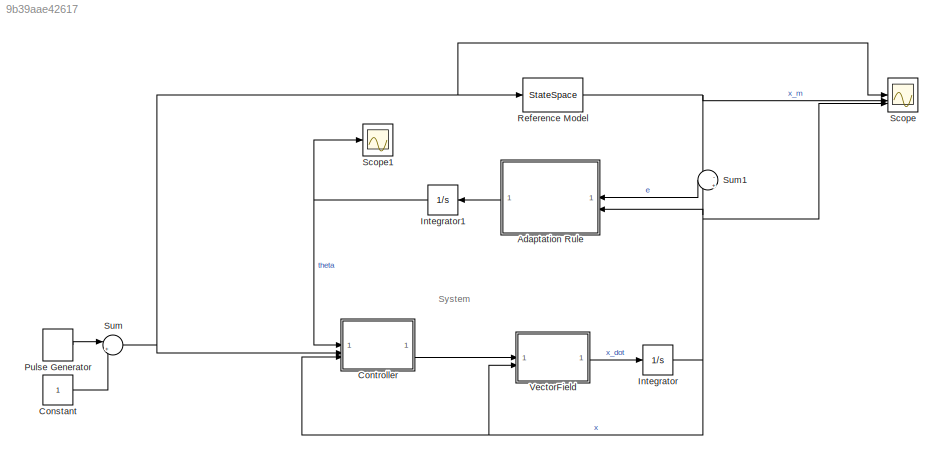
MODEL slx_9b39aae42617
KIND model
CONFIG AbsTol = auto
CONFIG EnableMultiTasking = off
CONFIG FixedStep = 0.01
CONFIG MaxStep = auto
CONFIG MinStep = auto
CONFIG RelTol = 1e-3
CONFIG SampleTimeConstraint = Unconstrained
CONFIG SolverName = FixedStepAuto
CONFIG StartTime = 0.0
CONFIG StopTime = 200.0
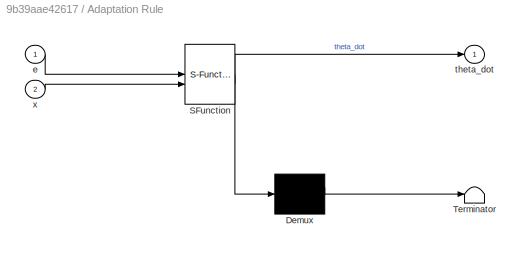
BLOCK [SubSystem] Adaptation Rule
  ErrorFcn = Stateflow.Translate.translate
  LibrarySourceBlock = simulink/User-Defined\nFunctions/MATLAB Function
  PermitHierarchicalResolution = ExplicitOnly
  SFBlockType = MATLAB Function
  TreatAsAtomicUnit = on
BLOCK [Demux] Adaptation Rule/ Demux 
  Outputs = 1
BLOCK [S-Function] Adaptation Rule/ SFunction 
  EnableBusSupport = on
  FunctionName = sf_sfun
  PortCounts = [2 2]
  SFcnIsStateOwnerBlock = off
  SFunctionDeploymentMode = off
  Tag = Stateflow S-Function 3
BLOCK [Terminator] Adaptation Rule/ Terminator 
BLOCK [Inport] Adaptation Rule/e
BLOCK [Outport] Adaptation Rule/theta_dot
BLOCK [Inport] Adaptation Rule/x
  Port = 2
BLOCK [Constant] Constant
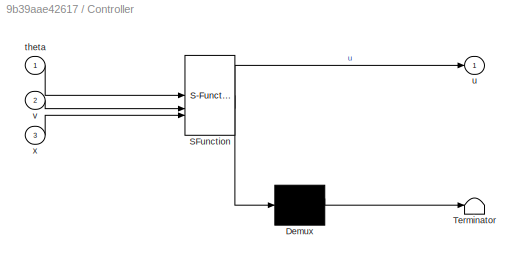
BLOCK [SubSystem] Controller
  ErrorFcn = Stateflow.Translate.translate
  LibrarySourceBlock = simulink/User-Defined\nFunctions/MATLAB Function
  PermitHierarchicalResolution = ExplicitOnly
  SFBlockType = MATLAB Function
  TreatAsAtomicUnit = on
BLOCK [Demux] Controller/ Demux 
  Outputs = 1
BLOCK [S-Function] Controller/ SFunction 
  EnableBusSupport = on
  FunctionName = sf_sfun
  PortCounts = [3 2]
  SFcnIsStateOwnerBlock = off
  SFunctionDeploymentMode = off
  Tag = Stateflow S-Function 1
BLOCK [Terminator] Controller/ Terminator 
BLOCK [Inport] Controller/theta
BLOCK [Outport] Controller/u
BLOCK [Inport] Controller/v
  Port = 2
BLOCK [Inport] Controller/x
  Port = 3
BLOCK [Integrator] Integrator
  InitialCondition = [1; 0]
BLOCK [Integrator] Integrator1
BLOCK [DiscretePulseGenerator] Pulse Generator
  Amplitude = 2
  Period = 50
  PulseType = Time based
  PulseWidth = 50
BLOCK [StateSpace] Reference Model
  A = [0, 1; -1 -2]
  B = [0; 1]
  C = eye(2)
  D = [0; 0]
  InitialCondition = [1; 0]
BLOCK [Scope] Scope
  Floating = off
  NumInputPorts = 3
  ScopeSpecificationString = Simulink.scopes.TimeScopeBlockCfg('CurrentConfiguration', extmgr.ConfigurationSet(extmgr.Configuration('Core','General UI',true),extmgr.Configuration('Core','Source UI',true),extmgr.Configuration('Sources','WiredSimulink',true),extmgr.Configuration('Visuals','Time Domain',true,'SerializedDisplays',{struct('MinYLimReal','-1.38365','MaxYLimReal','1.37994','YLabelReal','','MinYLimMag','0.00000','MaxY...<+1534ch>
BLOCK [Scope] Scope1
  Floating = off
  NumInputPorts = 1
  ScopeSpecificationString = Simulink.scopes.TimeScopeBlockCfg('CurrentConfiguration', extmgr.ConfigurationSet(extmgr.Configuration('Core','General UI',true),extmgr.Configuration('Core','Source UI',true),extmgr.Configuration('Sources','WiredSimulink',true,'DataLoggingVariableName','ScopeData1'),extmgr.Configuration('Visuals','Time Domain',true,'SerializedDisplays',{struct('MinYLimReal','-4.12249','MaxYLimReal','2.76131','YLab...<+1583ch>
BLOCK [Sum] Sum
  Inputs = |+-
BLOCK [Sum] Sum1
  Inputs = -|+
  NameLocation = top
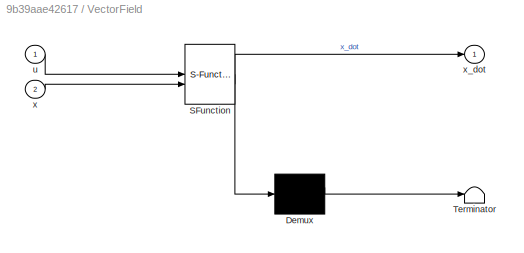
BLOCK [SubSystem] VectorField
  ErrorFcn = Stateflow.Translate.translate
  LibrarySourceBlock = simulink/User-Defined\nFunctions/MATLAB Function
  PermitHierarchicalResolution = ExplicitOnly
  SFBlockType = MATLAB Function
  TreatAsAtomicUnit = on
BLOCK [Demux] VectorField/ Demux 
  Outputs = 1
BLOCK [S-Function] VectorField/ SFunction 
  EnableBusSupport = on
  FunctionName = sf_sfun
  PortCounts = [2 2]
  SFcnIsStateOwnerBlock = off
  SFunctionDeploymentMode = off
  Tag = Stateflow S-Function 2
BLOCK [Terminator] VectorField/ Terminator 
BLOCK [Inport] VectorField/u
BLOCK [Inport] VectorField/x
  Port = 2
BLOCK [Outport] VectorField/x_dot
ANNOTATION (root): System
LINE Adaptation Rule:1 -> Integrator1:1
LINE Constant:1 -> Sum:2
LINE Controller:1 -> VectorField:1
NET Integrator1:1 -> Controller:1, Scope1:1
NET Integrator:1 -> Adaptation Rule:2, Controller:3, Scope:3, Sum1:2, VectorField:2
LINE Pulse Generator:1 -> Sum:1
NET Reference Model:1 -> Scope:2, Sum1:1
LINE Sum1:1 -> Adaptation Rule:1
NET Sum:1 -> Controller:2, Reference Model:1, Scope:1
LINE VectorField:1 -> Integrator:1
note: NET lines group one-source signal fan-out (src -> all destinations, sorted); 1:1 wires keep LINE
CHART VectorField states=1 transitions=1
  STATE_LABEL 'eML_blk_kernel()'
  STATE_LABEL 'SCRIPT:\nfunction x_dot = f(u,x)\n\nx_dot = [\n    x(2); \n    -sin(x(1))-x(2)+1+0.5*u\n    ];\n'
CHART Adaptation Rule states=1 transitions=1
  STATE_LABEL 'eML_blk_kernel()'
  STATE_LABEL "SCRIPT:\nfunction theta_dot = fcn(e,x)\n\ngamma = 1;\n\nPsi = [\n    0, 0,    0,    0;\n    1, x(1), x(2), sin(x(1))\n    ];\n\nP = [1.5, 0.5; 0.5, 0.5];\n\ntheta_dot = -gamma * Psi' * P * e;\n"
CHART Controller states=1 transitions=1
  STATE_LABEL 'eML_blk_kernel()'
  STATE_LABEL 'SCRIPT:\nfunction u = fcn(theta, v,x)\n\nPsi = [1, x(1), x(2), sin(x(1))];\n\nu = -x(1) -2*x(2) + Psi*theta + v;\n'
CHART  states=0 transitions=0
CHART  states=0 transitions=0
CHART  states=0 transitions=0
